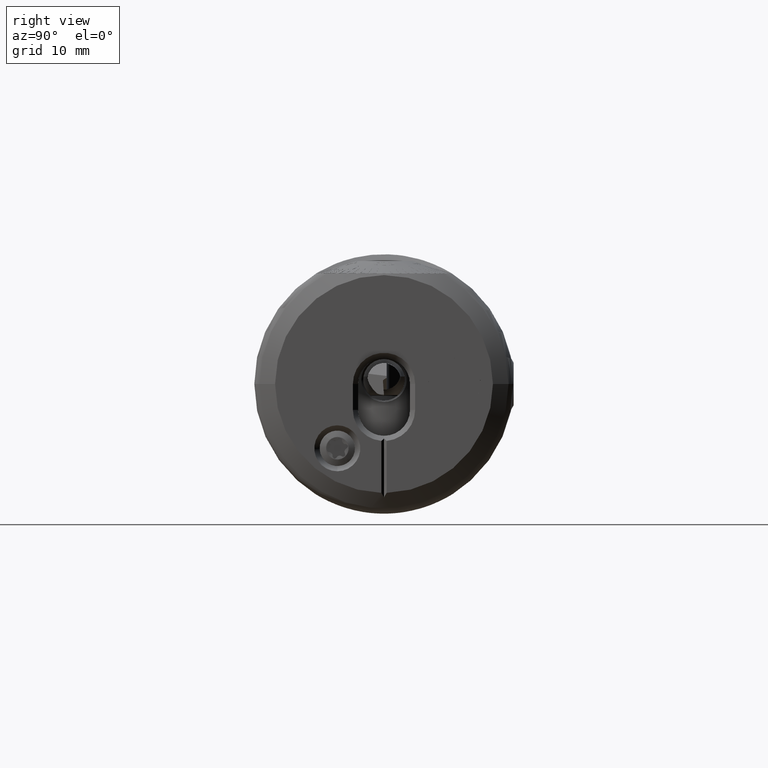
[diagram: clean part render]
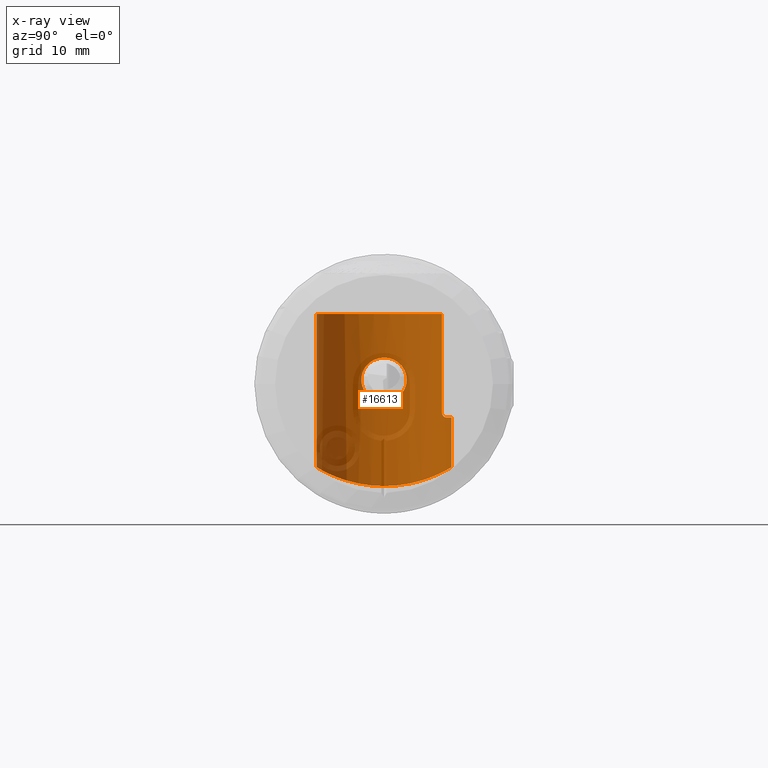
[diagram: x-ray — body ghosted, one internal face saturated and labeled with its STEP entity id]
A machine part, right view, then the same camera in x-ray: the body is ghosted and one INTERNAL B-rep face — a face not visible from any outside direction — is saturated and labeled: STEP entity #16613.
In plain terms, the highlighted cylindrical surface (partial cylindrical patch) has radius 6.5 mm, axis along (0, 0, -1).
Its self-contained STEP definition (entity closure, byte-faithful):
#870 = CARTESIAN_POINT ( 'NONE',  ( 0.8837821260251342800, -6.074243129938475100, -2.323458991434657900 ) ) ;
#974 = CARTESIAN_POINT ( 'NONE',  ( 0.8839973945955711400, -6.074687077228781500, 2.322488089758999200 ) ) ;
#1080 = CARTESIAN_POINT ( 'NONE',  ( -0.5891503090613613400, -1.707324444133985200, 6.275411025850034200 ) ) ;
#1388 = VECTOR ( 'NONE', #13328, 1000.000000000000000 ) ;
#1554 = ORIENTED_EDGE ( 'NONE', *, *, #5039, .F. ) ;
#1593 = CARTESIAN_POINT ( 'NONE',  ( -5.799468596210426900, -3.276541985454648900, -5.614312947018491200 ) ) ;
#1602 = CARTESIAN_POINT ( 'NONE',  ( -7.539112927424489500, -6.338032162197618100, -1.445751134382701000 ) ) ;
#1608 = CARTESIAN_POINT ( 'NONE',  ( -9.431215498314582400, -6.120995751614637800, 2.187101060184683600 ) ) ;
#1696 = CARTESIAN_POINT ( 'NONE',  ( -10.10089747840063300, -6.196343278247973700, -1.964343725324482600 ) ) ;
#1706 = CARTESIAN_POINT ( 'NONE',  ( -7.121879412521024300, -6.462645022090852000, 0.7084167648827227600 ) ) ;
#1763 = VERTEX_POINT ( 'NONE', #7728 ) ;
#1902 = AXIS2_PLACEMENT_3D ( 'NONE', #8290, #25743, #10795 ) ;
#2290 = AXIS2_PLACEMENT_3D ( 'NONE', #9683, #27147, #12207 ) ;
#2346 = ORIENTED_EDGE ( 'NONE', *, *, #30978, .F. ) ;
#2496 = VERTEX_POINT ( 'NONE', #26773 ) ;
#2971 = CYLINDRICAL_SURFACE ( 'NONE', #3872, 6.499999999999999100 ) ;
#3286 = CARTESIAN_POINT ( 'NONE',  ( -0.5202972397774957600, -2.124331311918749700, -6.157680969243625000 ) ) ;
#3393 = CARTESIAN_POINT ( 'NONE',  ( 0.9842059471458443100, -6.274678035750591600, -1.710269753260006200 ) ) ;
#3496 = CARTESIAN_POINT ( 'NONE',  ( 0.6661288776273754900, -5.624562901634405400, 3.285095013169629500 ) ) ;
#3547 = EDGE_CURVE ( 'NONE', #28511, #3781, #16553, .T. ) ;
#3614 = CARTESIAN_POINT ( 'NONE',  ( -0.6966234558048063400, -0.8599871273698599400, 6.457367907379362400 ) ) ;
#3781 = VERTEX_POINT ( 'NONE', #30347 ) ;
#3872 = AXIS2_PLACEMENT_3D ( 'NONE', #4147, #21722, #16740 ) ;
#4141 = CARTESIAN_POINT ( 'NONE',  ( -5.999999999999997300, -3.330437981661296100, -5.581951527047486600 ) ) ;
#4147 = CARTESIAN_POINT ( 'NONE',  ( 8.315476190476179100, 1.734723475976807100E-015, 0.0000000000000000000 ) ) ;
#4148 = CARTESIAN_POINT ( 'NONE',  ( -8.069243087033315800, -6.214379280771017200, -1.909181393524601600 ) ) ;
#4158 = CARTESIAN_POINT ( 'NONE',  ( -8.866900205388688500, -6.126177498131012200, 2.172748453449519200 ) ) ;
#4257 = CARTESIAN_POINT ( 'NONE',  ( -10.45663475691447700, -6.264045472952635600, -1.737396981665261900 ) ) ;
#4266 = CARTESIAN_POINT ( 'NONE',  ( -7.025363901466168800, -6.495154197536367100, 0.2885480172090865200 ) ) ;
#4528 = LINE ( 'NONE', #29113, #30315 ) ;
#5039 = EDGE_CURVE ( 'NONE', #16123, #27850, #8113, .T. ) ;
#5463 = ORIENTED_EDGE ( 'NONE', *, *, #17410, .T. ) ;
#5831 = CARTESIAN_POINT ( 'NONE',  ( -0.2365675104378554000, -3.275971479940962300, -5.629896609389451400 ) ) ;
#5854 = CARTESIAN_POINT ( 'NONE',  ( 8.315476190476179100, -3.330437981661297900, -5.581951527047490200 ) ) ;
#5942 = CARTESIAN_POINT ( 'NONE',  ( 1.077141108730358200, -6.456347475058422000, -0.8665751961854745200 ) ) ;
#6048 = CARTESIAN_POINT ( 'NONE',  ( 0.4509954740179740700, -5.144006346807681300, 3.979121864487261500 ) ) ;
#6152 = CARTESIAN_POINT ( 'NONE',  ( -0.7229217479686782500, 2.530748824319894400E-015, 6.499999999999999100 ) ) ;
#6359 = ORIENTED_EDGE ( 'NONE', *, *, #22339, .T. ) ;
#6679 = CARTESIAN_POINT ( 'NONE',  ( -8.591560815130312900, -6.145905834239373500, -2.116303665773681800 ) ) ;
#6686 = CARTESIAN_POINT ( 'NONE',  ( -8.457724580678613400, -6.160351183615286900, 2.074471167870187000 ) ) ;
#6782 = CARTESIAN_POINT ( 'NONE',  ( -10.76071732214576600, -6.337993662353051500, -1.445877193366669400 ) ) ;
#6792 = CARTESIAN_POINT ( 'NONE',  ( -7.011409258111757300, -6.499999993531518200, 0.0002899831270593418400 ) ) ;
#7728 = CARTESIAN_POINT ( 'NONE',  ( -11.28859076068278000, -6.499999999999998200, 1.090835522833591500E-015 ) ) ;
#8113 = LINE ( 'NONE', #20825, #1388 ) ;
#8145 = CARTESIAN_POINT ( 'NONE',  ( -0.6958793290409195400, -0.8674604867401916100, -6.456126017547861200 ) ) ;
#8175 = DIRECTION ( 'NONE',  ( -1.000000000000000000, -0.0000000000000000000, 9.832277397369094200E-034 ) ) ;
#8290 = CARTESIAN_POINT ( 'NONE',  ( -5.499999999999996400, 1.734723475976807100E-015, 0.0000000000000000000 ) ) ;
#8371 = CARTESIAN_POINT ( 'NONE',  ( 0.1069685500216339400, -4.299242092690009000, -4.892824032680448600 ) ) ;
#8472 = CARTESIAN_POINT ( 'NONE',  ( 1.100077289859462800, -6.500148634371199400, 0.2125613596373735500 ) ) ;
#8584 = CARTESIAN_POINT ( 'NONE',  ( 0.2792412256594085100, -4.735298505656471600, 4.457614509048129400 ) ) ;
#9019 = CARTESIAN_POINT ( 'NONE',  ( -7.011409258111757300, -6.499999993531518200, 0.0002899831270593418400 ) ) ;
#9110 = CARTESIAN_POINT ( 'NONE',  ( -11.21937810369818700, -6.476466558495782300, 0.5703172947259974600 ) ) ;
#9128 = CARTESIAN_POINT ( 'NONE',  ( -15.50000000000000000, 2.530743895422586300E-015, 6.499999999999997300 ) ) ;
#9210 = CARTESIAN_POINT ( 'NONE',  ( -8.867661265806402700, -6.127313230090825500, -2.169352602900075600 ) ) ;
#9215 = CARTESIAN_POINT ( 'NONE',  ( -8.074927297753230700, -6.217831386905845500, 1.896139453829490000 ) ) ;
#9307 = CARTESIAN_POINT ( 'NONE',  ( -11.00472445341857200, -6.407688373134882400, -1.098172995641559100 ) ) ;
#9683 = CARTESIAN_POINT ( 'NONE',  ( -15.50000000000000000, 1.734723475976807100E-015, 1.232595164407830900E-029 ) ) ;
#10089 = VECTOR ( 'NONE', #8175, 1000.000000000000000 ) ;
#10309 = B_SPLINE_CURVE_WITH_KNOTS ( 'NONE', 3,
 ( #11507, #16537, #26567, #11608, #29067, #14144, #31573, #16637, #1602, #19127, #4148, #21615, #6679, #24150, #9210, #26677, #11716, #29167, #14248, #31679, #16745, #1696, #19252, #4257, #21724, #6782, #24260, #9307, #26777, #11830, #29279, #14352 ),
 .UNSPECIFIED., .F., .F.,
 ( 4, 2, 2, 2, 2, 2, 2, 2, 2, 2, 2, 2, 2, 2, 2, 4 ),
 ( 0.5000000000000000000, 0.5312499999999998900, 0.5624999999999997800, 0.5937499999999996700, 0.6249999999999995600, 0.6874999999999995600, 0.7187499999999996700, 0.7343749999999997800, 0.7499999999999997800, 0.7812499999999997800, 0.8124999999999998900, 0.8437500000000000000, 0.8750000000000000000, 0.9062500000000000000, 0.9375000000000000000, 1.000000000000000000 ),
 .UNSPECIFIED. ) ;
#10795 = DIRECTION ( 'NONE',  ( -2.668805347656626700E-016, 5.925938290422265000E-032, -1.000000000000000000 ) ) ;
#10866 = CARTESIAN_POINT ( 'NONE',  ( 0.3393347434444030600, -4.881246065953966700, -4.297372170363343200 ) ) ;
#10977 = CARTESIAN_POINT ( 'NONE',  ( 1.071918526439304100, -6.445858815812148800, 0.8649469372950330200 ) ) ;
#11086 = CARTESIAN_POINT ( 'NONE',  ( -0.01331069857359479100, -3.970811571766296000, 5.163474869662606700 ) ) ;
#11507 = CARTESIAN_POINT ( 'NONE',  ( -7.011409258111757300, -6.499999993531518200, 0.0002899831270593418400 ) ) ;
#11603 = CARTESIAN_POINT ( 'NONE',  ( -5.499999999999997300, -2.607153608320591100, -5.957812948932413200 ) ) ;
#11608 = CARTESIAN_POINT ( 'NONE',  ( -7.080701501095578700, -6.476440641078937700, -0.5707043854009141700 ) ) ;
#11618 = CARTESIAN_POINT ( 'NONE',  ( -11.01646503316907700, -6.410851212065515400, 1.105247985648199800 ) ) ;
#11716 = CARTESIAN_POINT ( 'NONE',  ( -9.080593330731359100, -6.120929194707092500, -2.187287313862320100 ) ) ;
#11723 = CARTESIAN_POINT ( 'NONE',  ( -7.735222134248703100, -6.288889793977523000, 1.646368460900963400 ) ) ;
#11830 = CARTESIAN_POINT ( 'NONE',  ( -11.23273033132304900, -6.480140224176968100, -0.5743833769017898700 ) ) ;
#12207 = DIRECTION ( 'NONE',  ( 0.0000000000000000000, 0.0000000000000000000, -1.000000000000000000 ) ) ;
#12226 = ORIENTED_EDGE ( 'NONE', *, *, #28709, .T. ) ;
#12597 = EDGE_CURVE ( 'NONE', #12882, #27850, #19240, .T. ) ;
#12882 = VERTEX_POINT ( 'NONE', #17179 ) ;
#13288 = CARTESIAN_POINT ( 'NONE',  ( -0.7229217479686865800, -0.4383952534096797700, -6.500000000000000900 ) ) ;
#13328 = DIRECTION ( 'NONE',  ( 1.000000000000000000, 0.0000000000000000000, -9.832277397369094200E-034 ) ) ;
#13392 = CARTESIAN_POINT ( 'NONE',  ( 0.5086490644720529400, -5.275125809926851900, -3.803612175289875300 ) ) ;
#13502 = CARTESIAN_POINT ( 'NONE',  ( 1.011496419800627100, -6.328237073345898800, 1.499882958245007700 ) ) ;
#13609 = CARTESIAN_POINT ( 'NONE',  ( -0.3429544523623108700, -2.898532611254789800, 5.833192970856480900 ) ) ;
#13715 = ORIENTED_EDGE ( 'NONE', *, *, #25355, .F. ) ;
#14137 = CARTESIAN_POINT ( 'NONE',  ( -5.499999999999997300, -2.415116066758572700, -6.034667711157308800 ) ) ;
#14144 = CARTESIAN_POINT ( 'NONE',  ( -7.229420623618475300, -6.428183709963160900, -0.9727675477092353500 ) ) ;
#14155 = CARTESIAN_POINT ( 'NONE',  ( -10.46508218209573800, -6.263945192534849900, 1.748013988862413800 ) ) ;
#14248 = CARTESIAN_POINT ( 'NONE',  ( -9.430762718805127100, -6.126031919722276300, -2.173162131988070700 ) ) ;
#14259 = CARTESIAN_POINT ( 'NONE',  ( -7.451534583741425500, -6.362201394869980000, 1.336804654462735700 ) ) ;
#14352 = CARTESIAN_POINT ( 'NONE',  ( -11.28859076068278000, -6.499999999999998200, 1.090835522833591500E-015 ) ) ;
#15797 = CARTESIAN_POINT ( 'NONE',  ( -0.7229217479686831400, 0.0000000000000000000, -6.499999999999999100 ) ) ;
#15901 = CARTESIAN_POINT ( 'NONE',  ( 0.7632363355167061100, -5.827934735516112000, -2.909422943557385300 ) ) ;
#16010 = CARTESIAN_POINT ( 'NONE',  ( 0.9208832497657596400, -6.148752246195918800, 2.118734605141863200 ) ) ;
#16121 = CARTESIAN_POINT ( 'NONE',  ( -0.5170966288725165100, -2.116145435164441300, 6.149607206816569700 ) ) ;
#16123 = VERTEX_POINT ( 'NONE', #9128 ) ;
#16537 = CARTESIAN_POINT ( 'NONE',  ( -7.011387463363313100, -6.500006406135121000, -0.1434491501983011800 ) ) ;
#16553 = B_SPLINE_CURVE_WITH_KNOTS ( 'NONE', 3,
 ( #14137, #11603, #26559, #31561, #16630, #1593, #19121, #4141 ),
 .UNSPECIFIED., .F., .F.,
 ( 4, 2, 2, 4 ),
 ( 0.0000000000000000000, 0.0006121878548838611100, 0.0009182817823257925400, 0.001224375709767724000 ),
 .UNSPECIFIED. ) ;
#16613 = ADVANCED_FACE ( 'NONE', ( #22935, #29563 ), #2971, .T. ) ;
#16630 = CARTESIAN_POINT ( 'NONE',  ( -5.665274706125524400, -3.139164872828773800, -5.692265028150433000 ) ) ;
#16637 = CARTESIAN_POINT ( 'NONE',  ( -7.451247788621065700, -6.362286419635791100, -1.336308466707888600 ) ) ;
#16645 = CARTESIAN_POINT ( 'NONE',  ( -9.713351676248359800, -6.142408619586878300, 2.129368136464596000 ) ) ;
#16740 = DIRECTION ( 'NONE',  ( 0.0000000000000000000, 0.0000000000000000000, -1.000000000000000000 ) ) ;
#16745 = CARTESIAN_POINT ( 'NONE',  ( -9.843944896950221200, -6.160566840023019400, -2.073820749900843200 ) ) ;
#16752 = CARTESIAN_POINT ( 'NONE',  ( -7.229005133242514700, -6.428318076751831500, 0.9717827424008800300 ) ) ;
#17179 = CARTESIAN_POINT ( 'NONE',  ( -0.7229217479686831400, 0.0000000000000000000, -6.499999999999999100 ) ) ;
#17410 = EDGE_CURVE ( 'NONE', #23607, #12882, #4528, .T. ) ;
#18302 = CARTESIAN_POINT ( 'NONE',  ( -0.5951592638011188300, -1.708470571073680900, -6.286110017991183500 ) ) ;
#18413 = CARTESIAN_POINT ( 'NONE',  ( 0.9201906813280410500, -6.147367398756213000, -2.122847414666501300 ) ) ;
#18517 = CARTESIAN_POINT ( 'NONE',  ( 0.7622334005952551300, -5.825877245002133400, 2.914146595395896700 ) ) ;
#18615 = CARTESIAN_POINT ( 'NONE',  ( -0.6206603224705136100, -1.496158743805224600, 6.329162942361243400 ) ) ;
#18997 = CARTESIAN_POINT ( 'NONE',  ( -0.7229217479686782500, 2.530748824319894400E-015, 6.499999999999999100 ) ) ;
#19023 = CARTESIAN_POINT ( 'NONE',  ( -11.28858544282980600, -6.499999999999998200, 0.1449069829971663900 ) ) ;
#19121 = CARTESIAN_POINT ( 'NONE',  ( -5.894410615170571100, -3.330437981661300600, -5.581951527047487500 ) ) ;
#19127 = CARTESIAN_POINT ( 'NONE',  ( -7.835922338459774000, -6.263670494214284900, -1.749235280455610800 ) ) ;
#19137 = CARTESIAN_POINT ( 'NONE',  ( -9.010674321804554400, -6.120896395693928400, 2.187379099028656800 ) ) ;
#19174 = DIRECTION ( 'NONE',  ( 1.000000000000000000, 0.0000000000000000000, -9.832277397369094200E-034 ) ) ;
#19240 = B_SPLINE_CURVE_WITH_KNOTS ( 'NONE', 3,
 ( #15797, #13288, #8145, #18302, #3286, #20787, #5831, #23311, #8371, #25820, #10866, #28333, #13392, #30826, #15901, #870, #18413, #3393, #20887, #5942, #23429, #8472, #25935, #10977, #28438, #13502, #30933, #16010, #974, #18517, #3496, #20987, #6048, #23533, #8584, #26028, #11086, #28548, #13609, #31042, #16121, #1080, #18615, #3614, #21091, #6152 ),
 .UNSPECIFIED., .F., .F.,
 ( 4, 2, 2, 2, 2, 2, 2, 2, 2, 2, 2, 2, 2, 2, 2, 2, 2, 2, 2, 2, 2, 2, 4 ),
 ( 3.088111537609593800E-019, 0.001294142737296496300, 0.002588285474592992600, 0.003882428211889488400, 0.005176570949185984300, 0.005823642317834231600, 0.006470713686482478800, 0.007764856423778970800, 0.008411927792427217200, 0.009058999161075465300, 0.01035314189837195800, 0.01100021326702020300, 0.01164728463566844900, 0.01229435600431669400, 0.01294142737296494200, 0.01423557011026143500, 0.01488264147890968000, 0.01552971284755792400, 0.01682385558485442100, 0.01811799832215091700, 0.01876506969079916300, 0.01941214105944741300, 0.02070628379674390600 ),
 .UNSPECIFIED. ) ;
#19252 = CARTESIAN_POINT ( 'NONE',  ( -10.22550644232791100, -6.217904295944593200, -1.895911423456210200 ) ) ;
#19262 = CARTESIAN_POINT ( 'NONE',  ( -7.081184244139001800, -6.476279414132916300, 0.5727939927127628800 ) ) ;
#20013 = ORIENTED_EDGE ( 'NONE', *, *, #29902, .T. ) ;
#20520 = CIRCLE ( 'NONE', #2290, 6.499999999999997300 ) ;
#20787 = CARTESIAN_POINT ( 'NONE',  ( -0.3409741615792528700, -2.906355770868900300, -5.829486647632070800 ) ) ;
#20825 = CARTESIAN_POINT ( 'NONE',  ( 8.315476190476179100, 2.530743895422586300E-015, 6.499999999999999100 ) ) ;
#20887 = CARTESIAN_POINT ( 'NONE',  ( 1.011536697283072400, -6.328316229921295400, -1.499585781624040100 ) ) ;
#20987 = CARTESIAN_POINT ( 'NONE',  ( 0.5068862492248236200, -5.271147938325317000, 3.809119147819774600 ) ) ;
#21091 = CARTESIAN_POINT ( 'NONE',  ( -0.7229217479686784700, -0.4319749933320309900, 6.500000000000000900 ) ) ;
#21615 = CARTESIAN_POINT ( 'NONE',  ( -8.458404097512474400, -6.160262317567761800, -2.074738306008450600 ) ) ;
#21625 = CARTESIAN_POINT ( 'NONE',  ( -8.592609228860599300, -6.145826035242913000, 2.116532287753817100 ) ) ;
#21722 = DIRECTION ( 'NONE',  ( 1.000000000000000000, 0.0000000000000000000, -9.832277397369094200E-034 ) ) ;
#21724 = CARTESIAN_POINT ( 'NONE',  ( -10.56406333882345200, -6.288716567554752500, -1.647048407086962700 ) ) ;
#21733 = CARTESIAN_POINT ( 'NONE',  ( -7.011431052860203300, -6.499993580927921700, 0.1440291164524201700 ) ) ;
#21972 = ORIENTED_EDGE ( 'NONE', *, *, #3547, .F. ) ;
#22339 = EDGE_CURVE ( 'NONE', #25242, #1763, #10309, .T. ) ;
#22935 = FACE_OUTER_BOUND ( 'NONE', #29078, .T. ) ;
#23311 = CARTESIAN_POINT ( 'NONE',  ( -0.01154858955321631600, -3.975750208008829800, -5.159567351369606300 ) ) ;
#23387 = LINE ( 'NONE', #5854, #10089 ) ;
#23424 = CARTESIAN_POINT ( 'NONE',  ( -5.499999999999998200, 1.734723475976807100E-015, -6.499999999999999100 ) ) ;
#23429 = CARTESIAN_POINT ( 'NONE',  ( 1.099842992907144900, -6.499698063230354700, -0.4386154226122741500 ) ) ;
#23507 = ORIENTED_EDGE ( 'NONE', *, *, #12597, .T. ) ;
#23533 = CARTESIAN_POINT ( 'NONE',  ( 0.3371830713820931400, -4.876081830931630300, 4.303259007600714400 ) ) ;
#23581 = CIRCLE ( 'NONE', #1902, 6.499999999999999100 ) ;
#23607 = VERTEX_POINT ( 'NONE', #23424 ) ;
#23680 = B_SPLINE_CURVE_WITH_KNOTS ( 'NONE', 3,
 ( #26464, #19023, #24051, #9110, #26576, #11618, #29077, #14155, #31582, #16645, #1608, #19137, #4158, #21625, #6686, #24159, #9215, #26686, #11723, #29180, #14259, #31688, #16752, #1706, #19262, #4266, #21733, #6792 ),
 .UNSPECIFIED., .F., .F.,
 ( 4, 2, 2, 2, 2, 2, 2, 2, 2, 2, 2, 2, 2, 4 ),
 ( 0.0000000000000000000, 0.03125000000000008300, 0.06250000000000016700, 0.1250000000000001900, 0.1875000000000002500, 0.2500000000000002800, 0.2812500000000002800, 0.3125000000000003300, 0.3437500000000003300, 0.3750000000000003900, 0.4062500000000002800, 0.4375000000000002200, 0.4687500000000001100, 0.5000000000000000000 ),
 .UNSPECIFIED. ) ;
#24051 = CARTESIAN_POINT ( 'NONE',  ( -11.27448362992006100, -6.495105669537286600, 0.2889346665292653000 ) ) ;
#24150 = CARTESIAN_POINT ( 'NONE',  ( -8.798698557842115500, -6.131060703506498100, -2.158777335019654000 ) ) ;
#24159 = CARTESIAN_POINT ( 'NONE',  ( -8.198906211103503600, -6.196353898001898800, 1.964320672016570200 ) ) ;
#24260 = CARTESIAN_POINT ( 'NONE',  ( -10.85020494610093800, -6.362695291467081100, -1.334377324262885400 ) ) ;
#25242 = VERTEX_POINT ( 'NONE', #9019 ) ;
#25355 = EDGE_CURVE ( 'NONE', #3781, #2496, #23387, .T. ) ;
#25743 = DIRECTION ( 'NONE',  ( -1.000000000000000000, -1.650698398769170100E-017, 3.149720177713741700E-016 ) ) ;
#25820 = CARTESIAN_POINT ( 'NONE',  ( 0.2815224133048002700, -4.740912911310956300, -4.451634212730002800 ) ) ;
#25935 = CARTESIAN_POINT ( 'NONE',  ( 1.094392861378802800, -6.489237021231145000, 0.4324719181662847700 ) ) ;
#26028 = CARTESIAN_POINT ( 'NONE',  ( 0.1044987683584389200, -4.292667845673831200, 4.898624190781870200 ) ) ;
#26401 = CARTESIAN_POINT ( 'NONE',  ( -5.499999999999997300, -2.415116066758572700, -6.034667711157308800 ) ) ;
#26464 = CARTESIAN_POINT ( 'NONE',  ( -11.28859076068278000, -6.499999999999998200, 1.090835522833591500E-015 ) ) ;
#26559 = CARTESIAN_POINT ( 'NONE',  ( -5.519038694153747900, -2.792222820660899000, -5.872990105524038100 ) ) ;
#26567 = CARTESIAN_POINT ( 'NONE',  ( -7.025441715748673500, -6.495129912693567300, -0.2885728507120044500 ) ) ;
#26576 = CARTESIAN_POINT ( 'NONE',  ( -11.17756277965437000, -6.462463080360879400, 0.7100827615340922200 ) ) ;
#26677 = CARTESIAN_POINT ( 'NONE',  ( -9.008813040693398800, -6.122206970640528200, -2.183721581153581900 ) ) ;
#26686 = CARTESIAN_POINT ( 'NONE',  ( -7.844315130846733400, -6.263842235816607500, 1.738117495786827700 ) ) ;
#26773 = CARTESIAN_POINT ( 'NONE',  ( -15.50000000000000000, -3.330437981661301000, -5.581951527047486600 ) ) ;
#26777 = CARTESIAN_POINT ( 'NONE',  ( -11.07010237122060800, -6.428033952622280700, -0.9738649295972887600 ) ) ;
#27147 = DIRECTION ( 'NONE',  ( 1.000000000000000000, 0.0000000000000000000, -9.832277397369094200E-034 ) ) ;
#27850 = VERTEX_POINT ( 'NONE', #18997 ) ;
#28333 = CARTESIAN_POINT ( 'NONE',  ( 0.4527683450409806200, -5.148077347802354700, -3.973823140006197200 ) ) ;
#28438 = CARTESIAN_POINT ( 'NONE',  ( 1.055198698005870100, -6.413525994689098100, 1.078386600598539900 ) ) ;
#28511 = VERTEX_POINT ( 'NONE', #26401 ) ;
#28548 = CARTESIAN_POINT ( 'NONE',  ( -0.2388453542731762100, -3.268336628483065700, 5.634429248027379000 ) ) ;
#28709 = EDGE_CURVE ( 'NONE', #16123, #2496, #20520, .T. ) ;
#28717 = EDGE_LOOP ( 'NONE', ( #20013, #6359 ) ) ;
#29067 = CARTESIAN_POINT ( 'NONE',  ( -7.121697691271329200, -6.462704477803244500, -0.7080065984818781900 ) ) ;
#29077 = CARTESIAN_POINT ( 'NONE',  ( -10.85739357155037300, -6.362187662896612700, 1.347267761963183200 ) ) ;
#29078 = EDGE_LOOP ( 'NONE', ( #1554, #12226, #13715, #21972, #2346, #5463, #23507 ) ) ;
#29113 = CARTESIAN_POINT ( 'NONE',  ( 8.315476190476179100, 1.734723475976807100E-015, -6.499999999999999100 ) ) ;
#29167 = CARTESIAN_POINT ( 'NONE',  ( -9.290481359356498100, -6.120930045565260400, -2.187284932810380100 ) ) ;
#29180 = CARTESIAN_POINT ( 'NONE',  ( -7.539221198838191600, -6.338014916891480300, 1.445763072949767200 ) ) ;
#29279 = CARTESIAN_POINT ( 'NONE',  ( -11.28860135613687300, -6.499999999999996400, -0.2887171368169742000 ) ) ;
#29563 = FACE_BOUND ( 'NONE', #28717, .T. ) ;
#29902 = EDGE_CURVE ( 'NONE', #1763, #25242, #23680, .T. ) ;
#30315 = VECTOR ( 'NONE', #19174, 1000.000000000000000 ) ;
#30347 = CARTESIAN_POINT ( 'NONE',  ( -5.999999999999997300, -3.330437981661296100, -5.581951527047486600 ) ) ;
#30826 = CARTESIAN_POINT ( 'NONE',  ( 0.6677838444025401300, -5.628101455592715600, -3.279046441853859400 ) ) ;
#30933 = CARTESIAN_POINT ( 'NONE',  ( 0.9845122676192708000, -6.275279614292347900, 1.707939189365918800 ) ) ;
#30978 = EDGE_CURVE ( 'NONE', #23607, #28511, #23581, .T. ) ;
#31042 = CARTESIAN_POINT ( 'NONE',  ( -0.4763970697327590800, -2.315363846598663700, 6.077293652712779900 ) ) ;
#31561 = CARTESIAN_POINT ( 'NONE',  ( -5.618901657830367200, -3.054168165192359100, -5.738613690054089400 ) ) ;
#31573 = CARTESIAN_POINT ( 'NONE',  ( -7.296605524461638100, -6.407287226046884500, -1.100490439128678500 ) ) ;
#31582 = CARTESIAN_POINT ( 'NONE',  ( -10.23014213681558200, -6.214313797657810700, 1.909370664592290100 ) ) ;
#31679 = CARTESIAN_POINT ( 'NONE',  ( -9.707866713269519100, -6.145838423473197300, -2.116499658852704500 ) ) ;
#31688 = CARTESIAN_POINT ( 'NONE',  ( -7.295660960672263300, -6.407563667872494800, 1.098990953210771300 ) ) ;